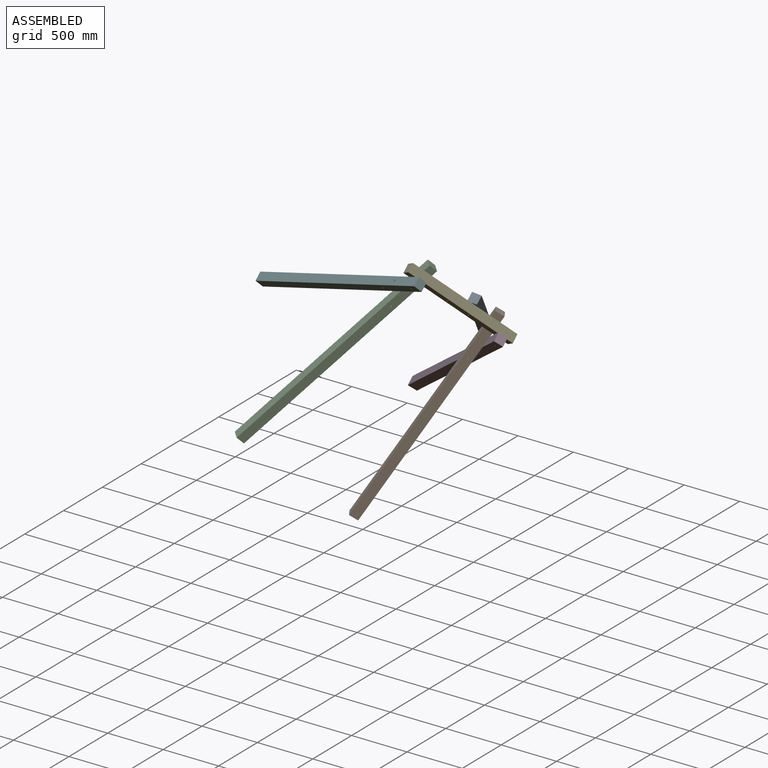
[diagram: assembled view]
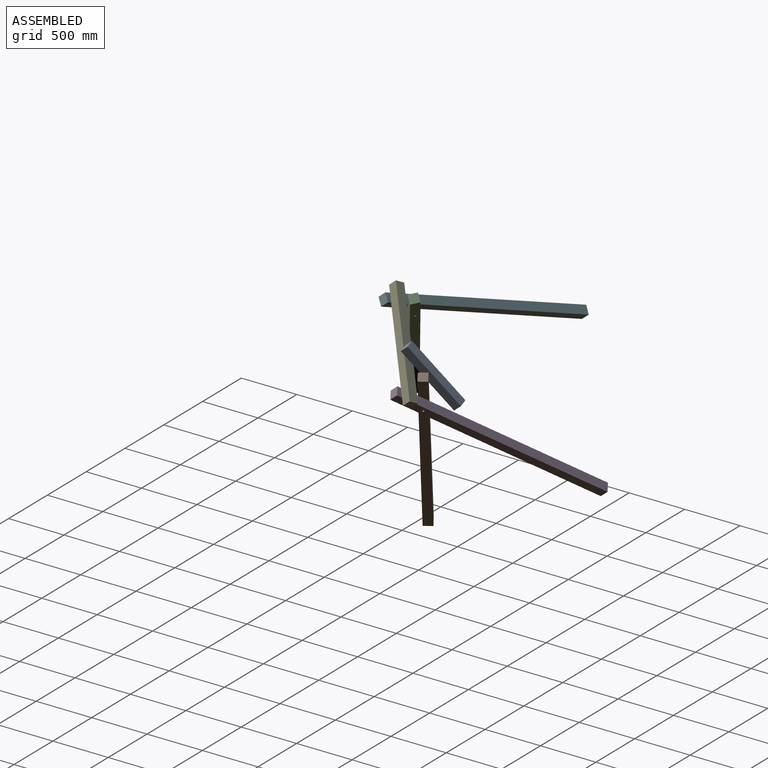
[diagram: assembled view, second angle]
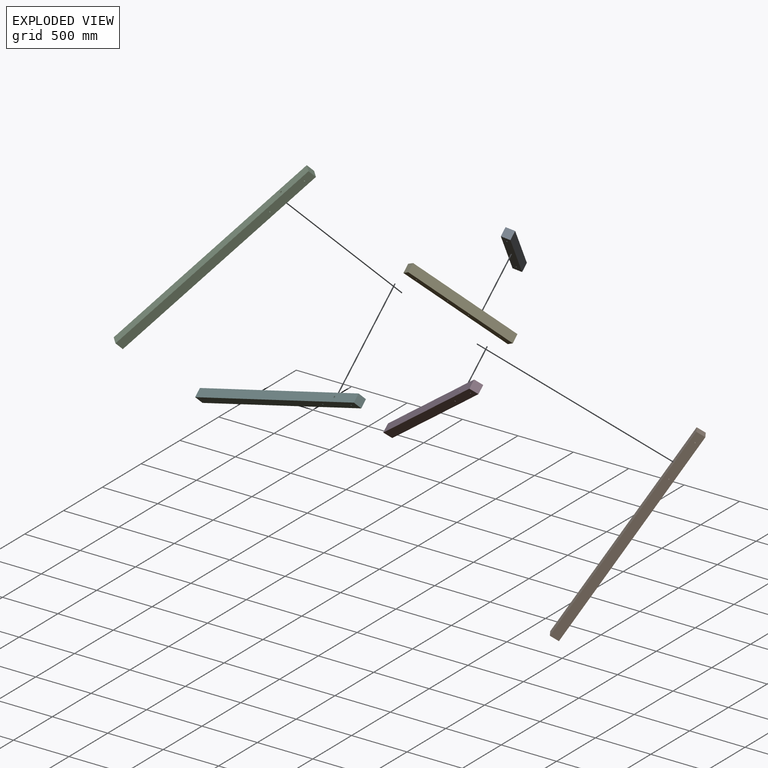
[diagram: exploded view]
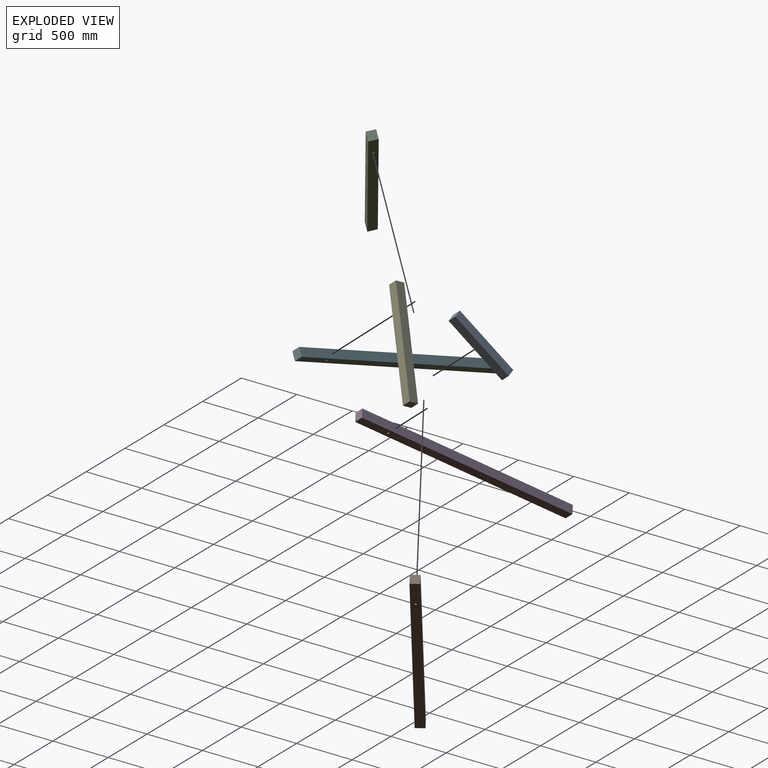
[diagram: exploded view, second angle]
ASSEMBLY  parts=6 mates=5
PART A: 8 faces, bbox 600x80x80 mm
  f0: plane 600x80mm, normal (0,0,1), area 48000mm2, adj f1,f3,f4,f5
  f1: plane 80x80mm, normal (-1,0,0), area 6400mm2, adj f0,f2,f4,f5
  f2: plane 600x80mm, normal (0,0,-1), area 48000mm2, adj f1,f3,f4,f5
  f3: plane 80x80mm, normal (1,0,0), area 6400mm2, adj f0,f2,f4,f5
  f4: plane 600x80mm, normal (0,-1,0), area 47842.9mm2, adj f0,f1,f2,f3,f6,f7
  f5: plane 600x80mm, normal (0,1,0), area 47842.9mm2, adj f0,f1,f2,f3,f6,f7
  f6: cylinder r=5mm len=80mm, axis (0,-1,0), area 2513.3mm2, adj f4,f5
  f7: cylinder r=5mm len=80mm, axis (0,-1,0), area 2513.3mm2, adj f4,f5
PART B: 9 faces, bbox 80x80x2000 mm
  f0: plane 80x80mm, normal (0,0,1), area 6400mm2, adj f1,f3,f4,f5
  f1: plane 2000x80mm, normal (-1,0,0), area 159685.8mm2, adj f0,f2,f4,f5,f8
  f2: plane 80x80mm, normal (0,0,-1), area 6400mm2, adj f1,f3,f4,f5
  f3: plane 2000x80mm, normal (1,0,0), area 159685.8mm2, adj f0,f2,f4,f5,f8
  f4: plane 2000x80mm, normal (0,-1,0), area 159842.9mm2, adj f0,f1,f2,f3,f6,f7
  f5: plane 2000x80mm, normal (0,1,0), area 159842.9mm2, adj f0,f1,f2,f3,f6,f7
  f6: cylinder r=5mm len=80mm, axis (0,-1,0), area 2513.3mm2, adj f4,f5
  f7: cylinder r=5mm len=80mm, axis (0,-1,0), area 2513.3mm2, adj f4,f5
  f8: cylinder r=10mm len=80mm, axis (1,0,0), area 5026.5mm2, adj f1,f3
PART C: same geometry as B
PART D: same geometry as B
PART E: 10 faces, bbox 1000x80x80 mm
  f0: plane 1000x80mm, normal (0,0,1), area 80000mm2, adj f1,f3,f4,f5
  f1: plane 80x80mm, normal (-1,0,0), area 6400mm2, adj f0,f2,f4,f5
  f2: plane 1000x80mm, normal (0,0,-1), area 80000mm2, adj f1,f3,f4,f5
  f3: plane 80x80mm, normal (1,0,0), area 6400mm2, adj f0,f2,f4,f5
  f4: plane 1000x80mm, normal (0,-1,0), area 79685.8mm2, adj f0,f1,f2,f3,f6,f7,f8,f9
  f5: plane 1000x80mm, normal (0,1,0), area 79685.8mm2, adj f0,f1,f2,f3,f6,f7,f8,f9
  f6: cylinder r=5mm len=80mm, axis (0,-1,0), area 2513.3mm2, adj f4,f5
  f7: cylinder r=5mm len=80mm, axis (0,-1,0), area 2513.3mm2, adj f4,f5
  f8: cylinder r=5mm len=80mm, axis (0,-1,0), area 2513.3mm2, adj f4,f5
  f9: cylinder r=5mm len=80mm, axis (0,-1,0), area 2513.3mm2, adj f4,f5
PART F: same geometry as B
PLACE A rot(axis=(0.41,-0.86,-0.31),83.6deg) t=(1891.82,2895.59,-139.92)mm
PLACE B rot(axis=(-0.21,0.69,0.69),46deg) t=(608.56,2909.36,-2403.53)mm
PLACE C rot(axis=(-0.14,0.7,0.7),65.7deg) t=(-27.18,2338.07,-1722.69)mm
PLACE D rot(axis=(-0.36,0.32,-0.88),165deg) t=(223.26,4094.94,-1942.62)mm
PLACE E rot(axis=(0.55,0.79,0.29),67.1deg) t=(1326.12,3778.77,-1316.92)mm
PLACE F rot(axis=(-0.51,0.29,-0.81),158.8deg) t=(-596.74,3329.87,-1030.85)mm
MATE revolute A.f7 <-> E.f8  axis (0,-0.77,-0.64) through (1387.42,3229.37,-662.16)mm
MATE revolute C.f8 <-> F.f8  axis (-0.42,-0.58,0.69) through (936.28,2951.81,-518.06)mm
MATE revolute D.f8 <-> B.f8  axis (-0.71,-0.45,0.54) through (1389.79,3368.13,-1014.22)mm
MATE revolute E.f6 <-> F.f6  axis (0,-0.77,-0.64) through (1100.63,2904.82,-399.83)mm
MATE revolute D.f6 <-> E.f7  axis (0,0.77,0.64) through (1559.5,3326.05,-901.84)mm
